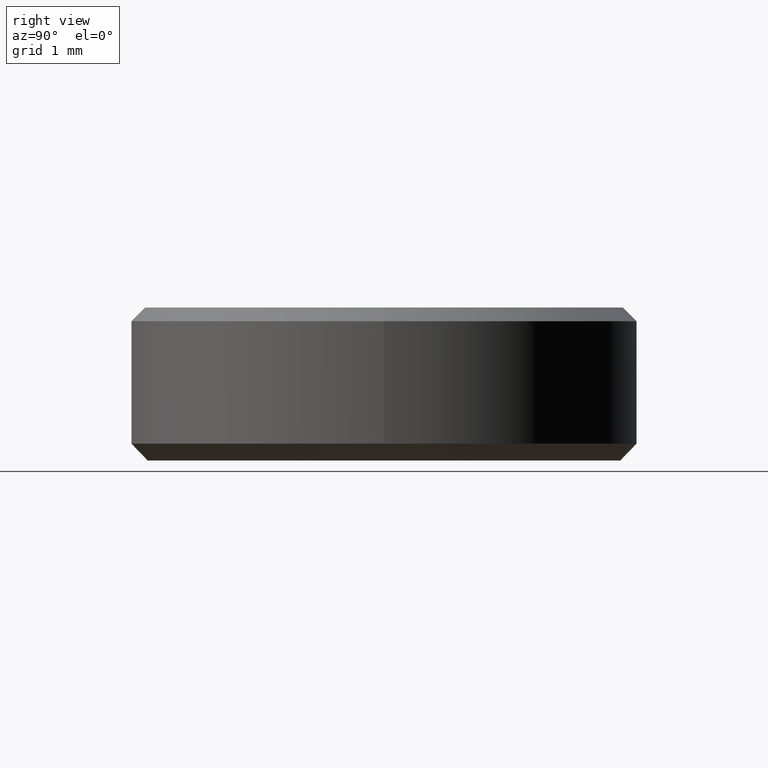
[diagram: clean part render]
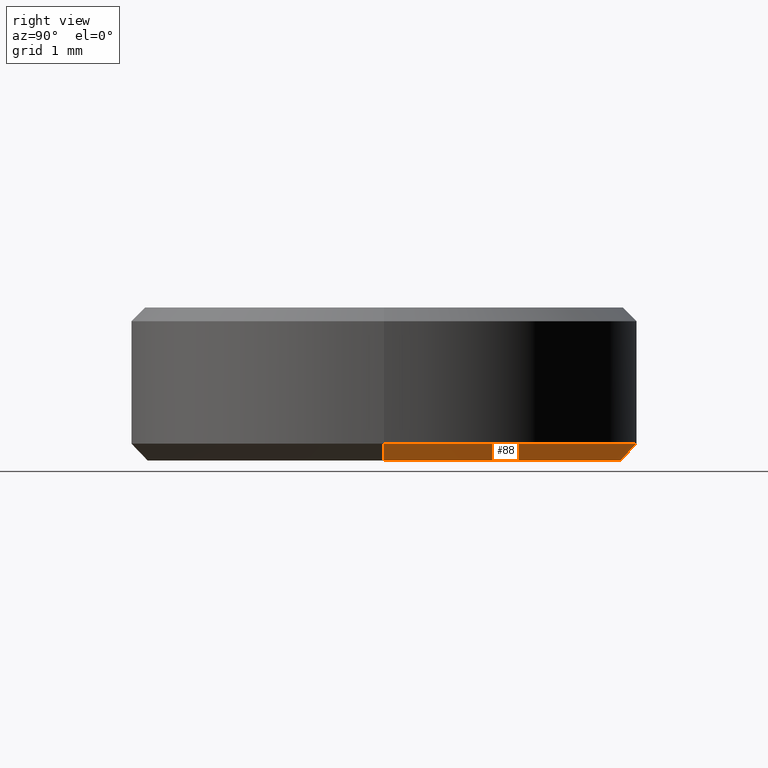
[diagram: same view with one face highlighted and labeled with its STEP entity id]
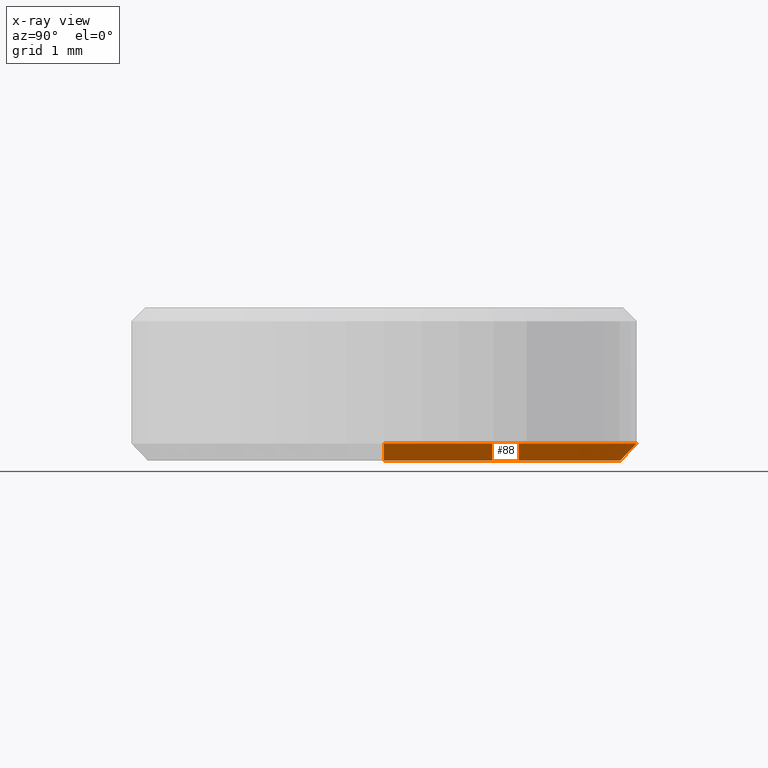
[diagram: x-ray of the same camera — body ghosted, the highlighted face saturated]
A machine part, right view. The second image highlights one B-rep face of the part: STEP entity #88.
The next image is the same camera in x-ray: the body ghosted, the highlighted face saturated — about 0% of this face is hidden behind the body in this view.
In plain terms, the highlighted conical surface has half-angle 45 deg.
Its self-contained STEP definition (entity closure, byte-faithful):
#9 = AXIS2_PLACEMENT_3D ( 'NONE', #244, #54, #135 ) ;
#12 = CARTESIAN_POINT ( 'NONE',  ( -3.000000000000000000, 3.673940397442059868E-16, 0.2000000000000011768 ) ) ;
#27 = AXIS2_PLACEMENT_3D ( 'NONE', #213, #32, #75 ) ;
#28 = LINE ( 'NONE', #257, #124 ) ;
#32 = DIRECTION ( 'NONE',  ( 0.000000000000000000, 0.000000000000000000, -1.000000000000000000 ) ) ;
#46 = CIRCLE ( 'NONE', #204, 3.000000000000000000 ) ;
#52 = DIRECTION ( 'NONE',  ( -0.000000000000000000, -0.000000000000000000, 1.000000000000000000 ) ) ;
#54 = DIRECTION ( 'NONE',  ( -0.000000000000000000, -0.000000000000000000, 1.000000000000000000 ) ) ;
#75 = DIRECTION ( 'NONE',  ( 1.000000000000000000, 0.000000000000000000, 0.000000000000000000 ) ) ;
#76 = EDGE_LOOP ( 'NONE', ( #98, #115, #251, #171 ) ) ;
#82 = EDGE_CURVE ( 'NONE', #187, #235, #46, .T. ) ;
#86 = CARTESIAN_POINT ( 'NONE',  ( -2.799999999999998046, 3.551475717527323339E-16, 1.836970198721029934E-16 ) ) ;
#88 = ADVANCED_FACE ( 'NONE', ( #163 ), #246, .T. ) ;
#90 = LINE ( 'NONE', #181, #130 ) ;
#98 = ORIENTED_EDGE ( 'NONE', *, *, #193, .F. ) ;
#115 = ORIENTED_EDGE ( 'NONE', *, *, #243, .T. ) ;
#124 = VECTOR ( 'NONE', #236, 1000.000000000000114 ) ;
#130 = VECTOR ( 'NONE', #161, 1000.000000000000114 ) ;
#135 = DIRECTION ( 'NONE',  ( 1.000000000000000000, 0.000000000000000000, 0.000000000000000000 ) ) ;
#144 = VERTEX_POINT ( 'NONE', #86 ) ;
#145 = CIRCLE ( 'NONE', #27, 2.799999999999998046 ) ;
#153 = CARTESIAN_POINT ( 'NONE',  ( 3.000000000000000000, 0.000000000000000000, 0.2000000000000011768 ) ) ;
#161 = DIRECTION ( 'NONE',  ( -0.7071067811865490160, 8.659560562354952580E-17, 0.7071067811865460184 ) ) ;
#163 = FACE_OUTER_BOUND ( 'NONE', #76, .T. ) ;
#171 = ORIENTED_EDGE ( 'NONE', *, *, #191, .F. ) ;
#181 = CARTESIAN_POINT ( 'NONE',  ( -3.000000000000000000, 3.673940397442059868E-16, 0.2000000000000011768 ) ) ;
#186 = CARTESIAN_POINT ( 'NONE',  ( 2.799999999999998046, 0.000000000000000000, 1.836970198721029934E-16 ) ) ;
#187 = VERTEX_POINT ( 'NONE', #153 ) ;
#191 = EDGE_CURVE ( 'NONE', #208, #187, #28, .T. ) ;
#193 = EDGE_CURVE ( 'NONE', #144, #208, #145, .T. ) ;
#203 = DIRECTION ( 'NONE',  ( 1.000000000000000000, 0.000000000000000000, 0.000000000000000000 ) ) ;
#204 = AXIS2_PLACEMENT_3D ( 'NONE', #266, #52, #203 ) ;
#208 = VERTEX_POINT ( 'NONE', #186 ) ;
#213 = CARTESIAN_POINT ( 'NONE',  ( 0.000000000000000000, 0.000000000000000000, 1.836970198721029934E-16 ) ) ;
#235 = VERTEX_POINT ( 'NONE', #12 ) ;
#236 = DIRECTION ( 'NONE',  ( 0.7071067811865490160, 0.000000000000000000, 0.7071067811865460184 ) ) ;
#243 = EDGE_CURVE ( 'NONE', #144, #235, #90, .T. ) ;
#244 = CARTESIAN_POINT ( 'NONE',  ( 0.000000000000000000, 0.000000000000000000, 0.2000000000000011768 ) ) ;
#246 = CONICAL_SURFACE ( 'NONE', #9, 3.000000000000000000, 0.7853981633974504994 ) ;
#251 = ORIENTED_EDGE ( 'NONE', *, *, #82, .F. ) ;
#257 = CARTESIAN_POINT ( 'NONE',  ( 3.000000000000000000, 0.000000000000000000, 0.2000000000000011768 ) ) ;
#266 = CARTESIAN_POINT ( 'NONE',  ( 0.000000000000000000, 0.000000000000000000, 0.2000000000000011768 ) ) ;